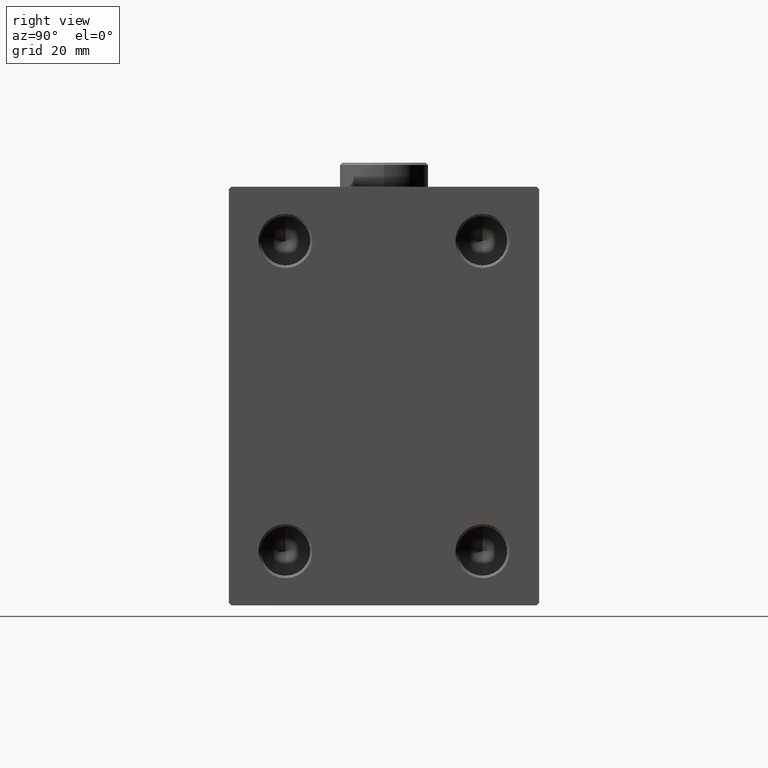
[diagram: clean part render]
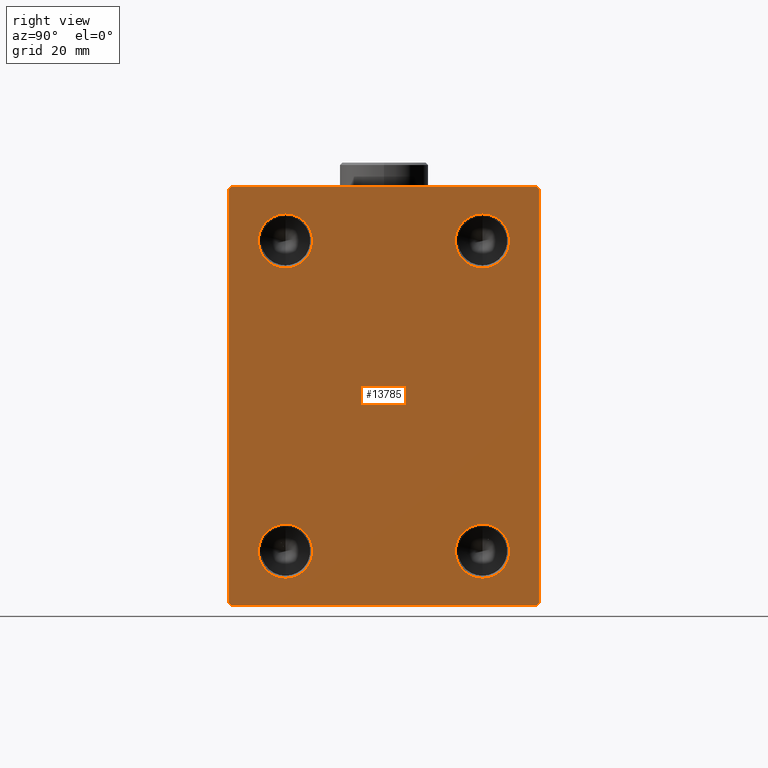
[diagram: same view with one face highlighted and labeled with its STEP entity id]
A machine part, right view. The second image highlights one B-rep face of the part: STEP entity #13785.
In plain terms, the highlighted planar face has unit normal (1, 0, 0).
Its self-contained STEP definition (entity closure, byte-faithful):
#244 = DIRECTION ( 'NONE',  ( 0.000000000000000000, 0.000000000000000000, -1.000000000000000000 ) ) ;
#298 = LINE ( 'NONE', #21276, #29522 ) ;
#382 = ORIENTED_EDGE ( 'NONE', *, *, #5019, .F. ) ;
#479 = EDGE_CURVE ( 'NONE', #28766, #43484, #29313, .T. ) ;
#1368 = CARTESIAN_POINT ( 'NONE',  ( 88.00000000000000000, 19.99999999999999645, 25.99999999999999289 ) ) ;
#1639 = AXIS2_PLACEMENT_3D ( 'NONE', #31079, #45125, #43463 ) ;
#1834 = ORIENTED_EDGE ( 'NONE', *, *, #23625, .T. ) ;
#1845 = EDGE_CURVE ( 'NONE', #2807, #13082, #39633, .T. ) ;
#2274 = EDGE_CURVE ( 'NONE', #13319, #27968, #13939, .T. ) ;
#2300 = FACE_BOUND ( 'NONE', #21462, .T. ) ;
#2683 = EDGE_CURVE ( 'NONE', #27968, #13319, #24233, .T. ) ;
#2746 = DIRECTION ( 'NONE',  ( 0.000000000000000000, 0.000000000000000000, -1.000000000000000000 ) ) ;
#2807 = VERTEX_POINT ( 'NONE', #32838 ) ;
#2998 = CARTESIAN_POINT ( 'NONE',  ( 88.00000000000000000, -36.75000000000001421, 36.75000000000001421 ) ) ;
#3237 = CARTESIAN_POINT ( 'NONE',  ( 88.00000000000000000, -20.00000000000000355, -31.50000000000000000 ) ) ;
#4865 = VERTEX_POINT ( 'NONE', #26601 ) ;
#5019 = EDGE_CURVE ( 'NONE', #13082, #2807, #7241, .T. ) ;
#5392 = EDGE_LOOP ( 'NONE', ( #40315, #42108 ) ) ;
#5522 = LINE ( 'NONE', #19145, #5810 ) ;
#5795 = AXIS2_PLACEMENT_3D ( 'NONE', #43486, #11929, #25297 ) ;
#5810 = VECTOR ( 'NONE', #12002, 1000.000000000000114 ) ;
#5862 = VECTOR ( 'NONE', #37798, 1000.000000000000114 ) ;
#6145 = DIRECTION ( 'NONE',  ( -0.000000000000000000, 0.7071067811865426878, -0.7071067811865524577 ) ) ;
#6205 = CARTESIAN_POINT ( 'NONE',  ( 88.00000000000000000, 19.99999999999999645, -31.50000000000000000 ) ) ;
#7170 = EDGE_CURVE ( 'NONE', #43545, #28442, #31128, .T. ) ;
#7241 = CIRCLE ( 'NONE', #21238, 5.500000000000005329 ) ;
#7613 = ORIENTED_EDGE ( 'NONE', *, *, #34955, .T. ) ;
#7763 = LINE ( 'NONE', #28748, #20560 ) ;
#7891 = CARTESIAN_POINT ( 'NONE',  ( 88.00000000000000000, 19.99999999999999645, -25.99999999999999289 ) ) ;
#8634 = CARTESIAN_POINT ( 'NONE',  ( 88.00000000000000000, -20.00000000000000355, 25.99999999999999289 ) ) ;
#8752 = ORIENTED_EDGE ( 'NONE', *, *, #1845, .F. ) ;
#9451 = FACE_OUTER_BOUND ( 'NONE', #15905, .T. ) ;
#9761 = CARTESIAN_POINT ( 'NONE',  ( 88.00000000000000000, 31.00000000000002842, 42.49999999999999289 ) ) ;
#10718 = CARTESIAN_POINT ( 'NONE',  ( 88.00000000000000000, -20.00000000000000355, -31.50000000000000000 ) ) ;
#11182 = DIRECTION ( 'NONE',  ( 0.000000000000000000, -1.000000000000000000, -1.101411730778925171E-16 ) ) ;
#11277 = EDGE_CURVE ( 'NONE', #28442, #33122, #298, .T. ) ;
#11875 = DIRECTION ( 'NONE',  ( 1.000000000000000000, -0.000000000000000000, -0.000000000000000000 ) ) ;
#11929 = DIRECTION ( 'NONE',  ( 1.000000000000000000, -0.000000000000000000, -0.000000000000000000 ) ) ;
#12002 = DIRECTION ( 'NONE',  ( -0.000000000000000000, -0.7071067811865474617, 0.7071067811865474617 ) ) ;
#12418 = VERTEX_POINT ( 'NONE', #39011 ) ;
#13078 = CARTESIAN_POINT ( 'NONE',  ( 88.00000000000000000, -36.75000000000023448, -36.74999999999972999 ) ) ;
#13082 = VERTEX_POINT ( 'NONE', #8634 ) ;
#13142 = FACE_BOUND ( 'NONE', #5392, .T. ) ;
#13316 = DIRECTION ( 'NONE',  ( 1.000000000000000000, -0.000000000000000000, -0.000000000000000000 ) ) ;
#13319 = VERTEX_POINT ( 'NONE', #7891 ) ;
#13785 = ADVANCED_FACE ( 'NONE', ( #13142, #27644, #2300, #41694, #9451 ), #17056, .T. ) ;
#13939 = CIRCLE ( 'NONE', #20553, 5.500000000000005329 ) ;
#14175 = ORIENTED_EDGE ( 'NONE', *, *, #42788, .T. ) ;
#14507 = EDGE_CURVE ( 'NONE', #23436, #12418, #42830, .T. ) ;
#15315 = ORIENTED_EDGE ( 'NONE', *, *, #479, .F. ) ;
#15386 = ORIENTED_EDGE ( 'NONE', *, *, #38584, .T. ) ;
#15905 = EDGE_LOOP ( 'NONE', ( #29137, #28219, #32824, #40183, #7613, #14175, #1834, #15386 ) ) ;
#16636 = CARTESIAN_POINT ( 'NONE',  ( 88.00000000000000000, -20.00000000000000355, -25.99999999999999289 ) ) ;
#16702 = CARTESIAN_POINT ( 'NONE',  ( 88.00000000000000000, 19.99999999999999645, -37.00000000000000711 ) ) ;
#17056 = PLANE ( 'NONE',  #38398 ) ;
#17334 = EDGE_CURVE ( 'NONE', #33122, #34502, #41174, .T. ) ;
#17881 = CARTESIAN_POINT ( 'NONE',  ( 88.00000000000000000, 31.50000000000000000, 42.49999999999999289 ) ) ;
#18773 = CARTESIAN_POINT ( 'NONE',  ( 88.00000000000000000, 31.00000000000004263, -42.50000000000000711 ) ) ;
#19085 = CARTESIAN_POINT ( 'NONE',  ( 88.00000000000000000, 31.50000000000001421, -42.00000000000003553 ) ) ;
#19145 = CARTESIAN_POINT ( 'NONE',  ( 88.00000000000000000, 36.75000000000001421, 36.75000000000001421 ) ) ;
#20275 = LINE ( 'NONE', #20499, #40088 ) ;
#20297 = CARTESIAN_POINT ( 'NONE',  ( 88.00000000000000000, -31.50000000000000000, -42.00000000000002842 ) ) ;
#20499 = CARTESIAN_POINT ( 'NONE',  ( 88.00000000000000000, 31.50000000000001421, -42.50000000000000711 ) ) ;
#20553 = AXIS2_PLACEMENT_3D ( 'NONE', #6205, #33411, #2746 ) ;
#20560 = VECTOR ( 'NONE', #39114, 1000.000000000000114 ) ;
#20676 = CARTESIAN_POINT ( 'NONE',  ( 88.00000000000000000, 19.99999999999999645, -31.50000000000000000 ) ) ;
#21238 = AXIS2_PLACEMENT_3D ( 'NONE', #39908, #42905, #32991 ) ;
#21276 = CARTESIAN_POINT ( 'NONE',  ( 88.00000000000000000, -31.50000000000000000, 42.49999999999998579 ) ) ;
#21314 = DIRECTION ( 'NONE',  ( 1.000000000000000000, -0.000000000000000000, -0.000000000000000000 ) ) ;
#21462 = EDGE_LOOP ( 'NONE', ( #26318, #15315 ) ) ;
#22060 = CIRCLE ( 'NONE', #44135, 5.500000000000005329 ) ;
#23436 = VERTEX_POINT ( 'NONE', #1368 ) ;
#23625 = EDGE_CURVE ( 'NONE', #24690, #4865, #20275, .T. ) ;
#23827 = DIRECTION ( 'NONE',  ( 0.000000000000000000, 0.000000000000000000, -1.000000000000000000 ) ) ;
#24184 = DIRECTION ( 'NONE',  ( 0.000000000000000000, -1.632680918566406547E-16, 1.000000000000000000 ) ) ;
#24233 = CIRCLE ( 'NONE', #34520, 5.500000000000005329 ) ;
#24358 = DIRECTION ( 'NONE',  ( 0.000000000000000000, 0.000000000000000000, -1.000000000000000000 ) ) ;
#24532 = ORIENTED_EDGE ( 'NONE', *, *, #2274, .F. ) ;
#24690 = VERTEX_POINT ( 'NONE', #19085 ) ;
#25297 = DIRECTION ( 'NONE',  ( 0.000000000000000000, 0.000000000000000000, -1.000000000000000000 ) ) ;
#25624 = AXIS2_PLACEMENT_3D ( 'NONE', #3237, #41726, #244 ) ;
#26318 = ORIENTED_EDGE ( 'NONE', *, *, #40172, .F. ) ;
#26601 = CARTESIAN_POINT ( 'NONE',  ( 88.00000000000000000, 31.50000000000000000, 42.00000000000002132 ) ) ;
#27644 = FACE_BOUND ( 'NONE', #33413, .T. ) ;
#27968 = VERTEX_POINT ( 'NONE', #16702 ) ;
#28219 = ORIENTED_EDGE ( 'NONE', *, *, #7170, .T. ) ;
#28442 = VERTEX_POINT ( 'NONE', #37725 ) ;
#28748 = CARTESIAN_POINT ( 'NONE',  ( 88.00000000000000000, 36.75000000000002842, -36.75000000000002842 ) ) ;
#28766 = VERTEX_POINT ( 'NONE', #39022 ) ;
#29137 = ORIENTED_EDGE ( 'NONE', *, *, #43000, .T. ) ;
#29313 = CIRCLE ( 'NONE', #25624, 5.500000000000005329 ) ;
#29352 = VECTOR ( 'NONE', #11182, 1000.000000000000000 ) ;
#29522 = VECTOR ( 'NONE', #23827, 1000.000000000000000 ) ;
#29938 = LINE ( 'NONE', #40529, #38836 ) ;
#30428 = DIRECTION ( 'NONE',  ( 0.000000000000000000, 0.000000000000000000, -1.000000000000000000 ) ) ;
#30799 = EDGE_CURVE ( 'NONE', #12418, #23436, #37990, .T. ) ;
#31079 = CARTESIAN_POINT ( 'NONE',  ( 88.00000000000000000, 19.99999999999999645, 31.50000000000000000 ) ) ;
#31128 = LINE ( 'NONE', #2998, #5862 ) ;
#32817 = VERTEX_POINT ( 'NONE', #9761 ) ;
#32824 = ORIENTED_EDGE ( 'NONE', *, *, #11277, .T. ) ;
#32838 = CARTESIAN_POINT ( 'NONE',  ( 88.00000000000000000, -20.00000000000000355, 37.00000000000000711 ) ) ;
#32850 = ORIENTED_EDGE ( 'NONE', *, *, #2683, .F. ) ;
#32991 = DIRECTION ( 'NONE',  ( 0.000000000000000000, 0.000000000000000000, -1.000000000000000000 ) ) ;
#33122 = VERTEX_POINT ( 'NONE', #20297 ) ;
#33352 = EDGE_LOOP ( 'NONE', ( #24532, #32850 ) ) ;
#33411 = DIRECTION ( 'NONE',  ( 1.000000000000000000, -0.000000000000000000, -0.000000000000000000 ) ) ;
#33413 = EDGE_LOOP ( 'NONE', ( #8752, #382 ) ) ;
#33524 = DIRECTION ( 'NONE',  ( 0.000000000000000000, 0.000000000000000000, -1.000000000000000000 ) ) ;
#33877 = CARTESIAN_POINT ( 'NONE',  ( 88.00000000000000000, 0.000000000000000000, 0.000000000000000000 ) ) ;
#34090 = VECTOR ( 'NONE', #6145, 1000.000000000000000 ) ;
#34502 = VERTEX_POINT ( 'NONE', #39946 ) ;
#34520 = AXIS2_PLACEMENT_3D ( 'NONE', #20676, #13316, #24358 ) ;
#34955 = EDGE_CURVE ( 'NONE', #34502, #37448, #29938, .T. ) ;
#35357 = DIRECTION ( 'NONE',  ( 0.000000000000000000, 0.000000000000000000, -1.000000000000000000 ) ) ;
#37206 = CARTESIAN_POINT ( 'NONE',  ( 88.00000000000000000, 19.99999999999999645, 31.50000000000000000 ) ) ;
#37448 = VERTEX_POINT ( 'NONE', #18773 ) ;
#37725 = CARTESIAN_POINT ( 'NONE',  ( 88.00000000000000000, -31.50000000000000000, 42.00000000000001421 ) ) ;
#37798 = DIRECTION ( 'NONE',  ( 0.000000000000000000, -0.7071067811865474617, -0.7071067811865474617 ) ) ;
#37981 = DIRECTION ( 'NONE',  ( 0.000000000000000000, 1.000000000000000000, 0.000000000000000000 ) ) ;
#37990 = CIRCLE ( 'NONE', #39451, 5.500000000000005329 ) ;
#38398 = AXIS2_PLACEMENT_3D ( 'NONE', #33877, #44933, #30428 ) ;
#38584 = EDGE_CURVE ( 'NONE', #4865, #32817, #5522, .T. ) ;
#38836 = VECTOR ( 'NONE', #37981, 1000.000000000000000 ) ;
#39011 = CARTESIAN_POINT ( 'NONE',  ( 88.00000000000000000, 19.99999999999999645, 37.00000000000000711 ) ) ;
#39022 = CARTESIAN_POINT ( 'NONE',  ( 88.00000000000000000, -20.00000000000000355, -37.00000000000000711 ) ) ;
#39114 = DIRECTION ( 'NONE',  ( -0.000000000000000000, 0.7071067811865474617, 0.7071067811865474617 ) ) ;
#39451 = AXIS2_PLACEMENT_3D ( 'NONE', #37206, #11875, #33524 ) ;
#39633 = CIRCLE ( 'NONE', #5795, 5.500000000000005329 ) ;
#39908 = CARTESIAN_POINT ( 'NONE',  ( 88.00000000000000000, -20.00000000000000355, 31.50000000000000000 ) ) ;
#39946 = CARTESIAN_POINT ( 'NONE',  ( 88.00000000000000000, -31.00000000000002842, -42.50000000000000711 ) ) ;
#40088 = VECTOR ( 'NONE', #24184, 1000.000000000000000 ) ;
#40172 = EDGE_CURVE ( 'NONE', #43484, #28766, #22060, .T. ) ;
#40183 = ORIENTED_EDGE ( 'NONE', *, *, #17334, .T. ) ;
#40315 = ORIENTED_EDGE ( 'NONE', *, *, #30799, .F. ) ;
#40529 = CARTESIAN_POINT ( 'NONE',  ( 88.00000000000000000, -31.50000000000000000, -42.50000000000000711 ) ) ;
#41139 = CARTESIAN_POINT ( 'NONE',  ( 88.00000000000000000, -31.00000000000002842, 42.49999999999998579 ) ) ;
#41174 = LINE ( 'NONE', #13078, #34090 ) ;
#41694 = FACE_BOUND ( 'NONE', #33352, .T. ) ;
#41726 = DIRECTION ( 'NONE',  ( 1.000000000000000000, -0.000000000000000000, -0.000000000000000000 ) ) ;
#42108 = ORIENTED_EDGE ( 'NONE', *, *, #14507, .F. ) ;
#42737 = LINE ( 'NONE', #17881, #29352 ) ;
#42788 = EDGE_CURVE ( 'NONE', #37448, #24690, #7763, .T. ) ;
#42830 = CIRCLE ( 'NONE', #1639, 5.500000000000005329 ) ;
#42905 = DIRECTION ( 'NONE',  ( 1.000000000000000000, -0.000000000000000000, -0.000000000000000000 ) ) ;
#43000 = EDGE_CURVE ( 'NONE', #32817, #43545, #42737, .T. ) ;
#43463 = DIRECTION ( 'NONE',  ( 0.000000000000000000, 0.000000000000000000, -1.000000000000000000 ) ) ;
#43484 = VERTEX_POINT ( 'NONE', #16636 ) ;
#43486 = CARTESIAN_POINT ( 'NONE',  ( 88.00000000000000000, -20.00000000000000355, 31.50000000000000000 ) ) ;
#43545 = VERTEX_POINT ( 'NONE', #41139 ) ;
#44135 = AXIS2_PLACEMENT_3D ( 'NONE', #10718, #21314, #35357 ) ;
#44933 = DIRECTION ( 'NONE',  ( 1.000000000000000000, 0.000000000000000000, 0.000000000000000000 ) ) ;
#45125 = DIRECTION ( 'NONE',  ( 1.000000000000000000, -0.000000000000000000, -0.000000000000000000 ) ) ;